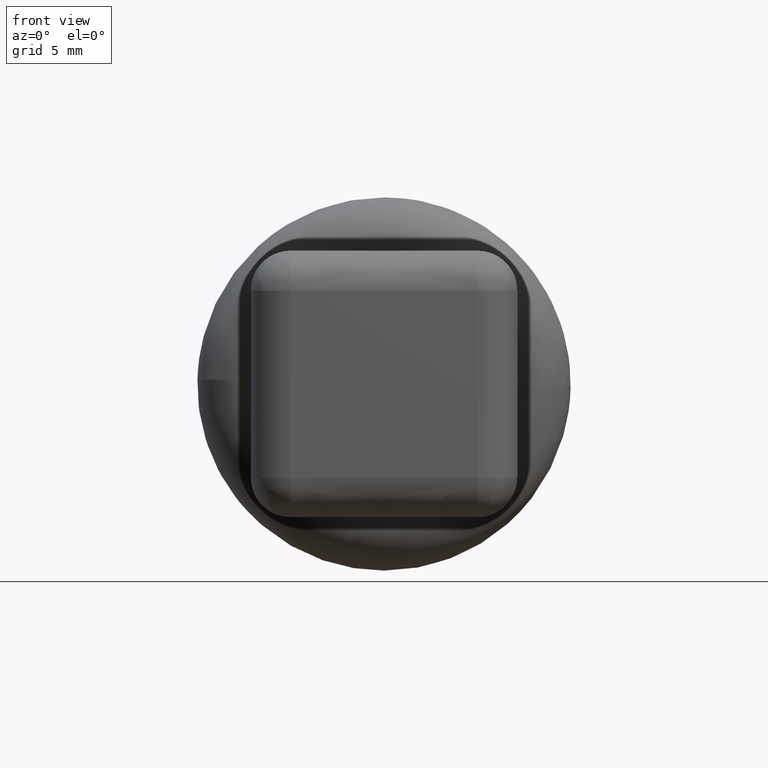
[diagram: clean part render]
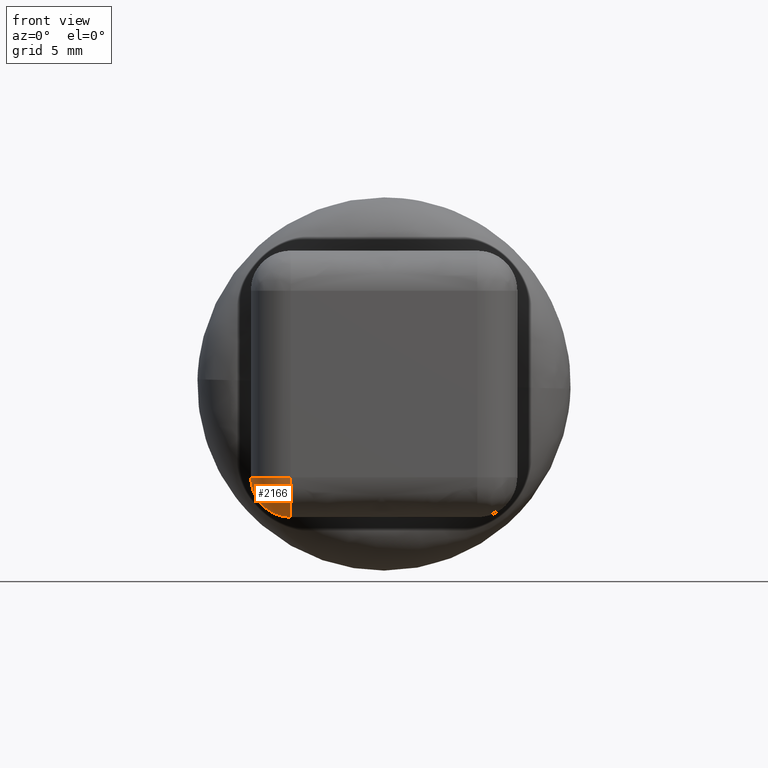
[diagram: same view with one face highlighted and labeled with its STEP entity id]
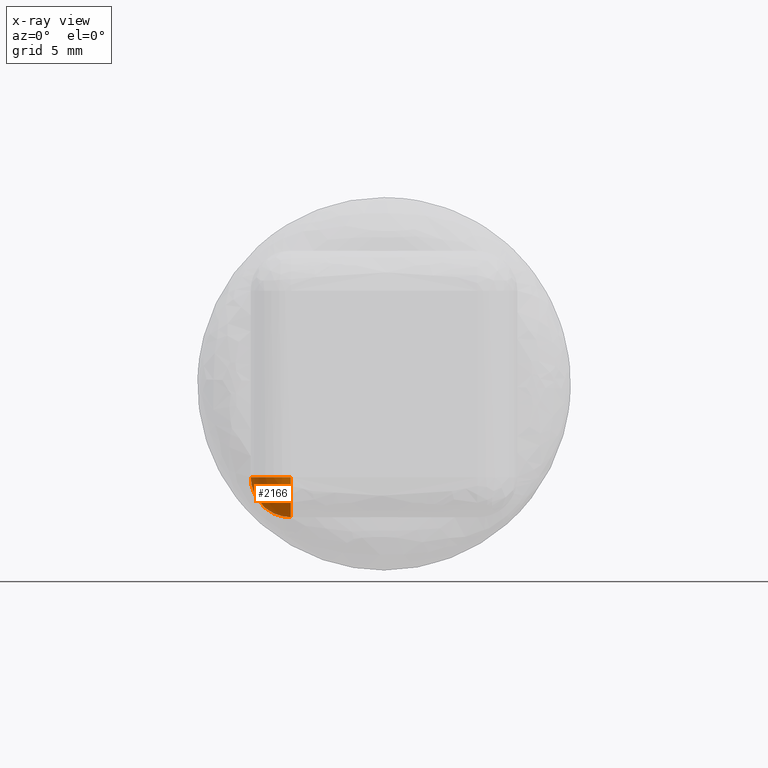
[diagram: x-ray of the same camera — body ghosted, the highlighted face saturated]
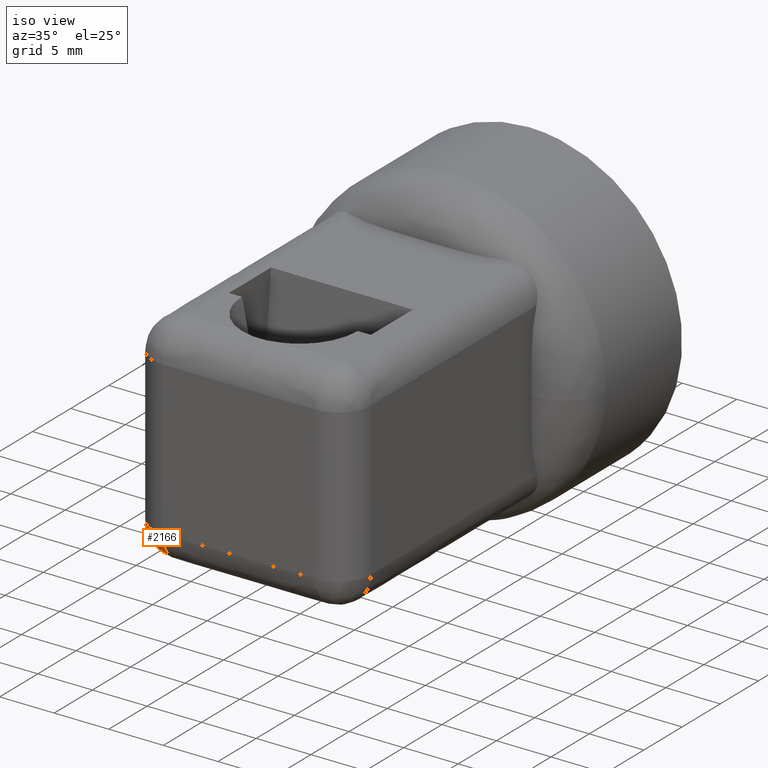
[diagram: same view with one face highlighted and labeled with its STEP entity id]
A machine part, front view. The second image highlights one B-rep face of the part: STEP entity #2166.
The next image is the same camera in x-ray: the body ghosted, the highlighted face saturated — about 0% of this face is hidden behind the body in this view.
A second angle (iso view) of the same face is appended — the face is thin or edge-on in the first view.
In plain terms, the highlighted face is a freeform B-spline surface patch.
Its self-contained STEP definition (entity closure, byte-faithful):
#2021=CARTESIAN_POINT('',(-7.000000474974510,-8.000001519918500,-7.000000332482200));
#2022=VERTEX_POINT('',#2021);
#2028=CARTESIAN_POINT('',(-7.000000332482160,-5.000001519918531,-10.000000474974559));
#2029=VERTEX_POINT('',#2028);
#2030=CARTESIAN_POINT('',(-7.000000474974510,-8.000001519918500,-7.000000332482200));
#2031=CARTESIAN_POINT('',(-7.000000332482161,-8.000001519918511,-10.000000332482200));
#2032=CARTESIAN_POINT('',(-7.000000332482160,-5.000001519918531,-10.000000474974559));
#2040=(BOUNDED_CURVE()B_SPLINE_CURVE(2,(#2030,#2031,#2032),.UNSPECIFIED.,.F.,.U.)CURVE()GEOMETRIC_REPRESENTATION_ITEM()QUASI_UNIFORM_CURVE()RATIONAL_B_SPLINE_CURVE((1.0,0.707106781186548,1.0))REPRESENTATION_ITEM(''));
#2041=EDGE_CURVE('',#2022,#2029,#2040,.T.);
#2111=CARTESIAN_POINT('',(-8.279893675351136,-7.094817513806688,-5.275581884822225));
#2112=CARTESIAN_POINT('',(-9.471133407538554,-6.924152343508608,-5.952417415218829));
#2113=CARTESIAN_POINT('',(-10.069226608234759,-5.129872425935568,-6.798248708125613));
#2114=CARTESIAN_POINT('',(-9.950712347542128,-4.462519491431339,-6.933579904645168));
#2115=CARTESIAN_POINT('',(-7.933886603675437,-7.994204613742158,-6.111340940852910));
#2116=CARTESIAN_POINT('',(-9.404748136709536,-8.109697691714635,-7.343340421150408));
#2117=CARTESIAN_POINT('',(-10.209919451172439,-5.694183323611151,-8.482024313779279));
#2118=CARTESIAN_POINT('',(-10.041626136005851,-4.766527246991333,-8.512336715390383));
#2119=CARTESIAN_POINT('',(-6.215719571582159,-7.994204613742158,-7.326268820884204));
#2120=CARTESIAN_POINT('',(-7.027028304743115,-8.109697691714635,-9.024642681524874));
#2121=CARTESIAN_POINT('',(-7.832199619206019,-5.694183323611151,-10.163326574153750));
#2122=CARTESIAN_POINT('',(-7.872567265345545,-4.766527246991333,-10.046093356142492));
#2123=CARTESIAN_POINT('',(-5.535330318258221,-7.564929564973026,-7.525248724318069));
#2124=CARTESIAN_POINT('',(-6.015312035092216,-7.521922070471169,-9.073708404461119));
#2125=CARTESIAN_POINT('',(-6.717817123291124,-5.414406435314440,-10.067200365802934));
#2126=CARTESIAN_POINT('',(-6.839726623354660,-4.617539388244438,-9.971201277554377));
#2134=(BOUNDED_SURFACE()B_SPLINE_SURFACE(2,2,((#2111,#2115,#2119,#2123),(#2112,#2116,#2120,#2124),(#2113,#2117,#2121,#2125),(#2114,#2118,#2122,#2126)),.UNSPECIFIED.,.F.,.F.,.U.)B_SPLINE_SURFACE_WITH_KNOTS((3,1,3),(3,1,3),(0.0,3.505077867230613,5.259727902164124),(0.0,3.328804154000401,5.491495983338385),.UNSPECIFIED.)GEOMETRIC_REPRESENTATION_ITEM()RATIONAL_B_SPLINE_SURFACE(((1.730100522145159,1.383870012375684,1.383870012375684,1.530013048189437),(1.346230509769475,1.0,1.0,1.146143035813753),(1.346230509769475,1.0,1.0,1.146143035813753),(1.442429356250109,1.096198846480633,1.096198846480633,1.242341882294387)))REPRESENTATION_ITEM('')SURFACE());
#2135=CARTESIAN_POINT('',(-10.000000474974501,-5.000001519918531,-7.000000332482200));
#2136=VERTEX_POINT('',#2135);
#2137=CARTESIAN_POINT('',(-7.000000474974510,-8.000001519918500,-7.000000332482200));
#2138=CARTESIAN_POINT('',(-10.000000474974510,-8.000001519918500,-7.000000332482199));
#2139=CARTESIAN_POINT('',(-10.000000474974510,-5.000001519918500,-7.000000332482200));
#2147=(BOUNDED_CURVE()B_SPLINE_CURVE(2,(#2137,#2138,#2139),.UNSPECIFIED.,.F.,.U.)CURVE()GEOMETRIC_REPRESENTATION_ITEM()QUASI_UNIFORM_CURVE()RATIONAL_B_SPLINE_CURVE((1.0,0.707106781186548,1.0))REPRESENTATION_ITEM(''));
#2148=EDGE_CURVE('',#2022,#2136,#2147,.T.);
#2149=ORIENTED_EDGE('',*,*,#2148,.T.);
#2150=CARTESIAN_POINT('',(-7.000000332482160,-5.000001519918531,-10.000000474974559));
#2151=CARTESIAN_POINT('',(-10.000000474974520,-5.000001519918531,-10.000000474974561));
#2152=CARTESIAN_POINT('',(-10.000000474974520,-5.000001519918531,-7.000000332482200));
#2160=(BOUNDED_CURVE()B_SPLINE_CURVE(2,(#2150,#2151,#2152),.UNSPECIFIED.,.F.,.U.)CURVE()GEOMETRIC_REPRESENTATION_ITEM()QUASI_UNIFORM_CURVE()RATIONAL_B_SPLINE_CURVE((1.0,0.707106781186547,1.0))REPRESENTATION_ITEM(''));
#2161=EDGE_CURVE('',#2029,#2136,#2160,.T.);
#2162=ORIENTED_EDGE('',*,*,#2161,.F.);
#2163=ORIENTED_EDGE('',*,*,#2041,.F.);
#2164=EDGE_LOOP('',(#2149,#2162,#2163));
#2165=FACE_OUTER_BOUND('',#2164,.T.);
#2166=ADVANCED_FACE('',(#2165),#2134,.T.);